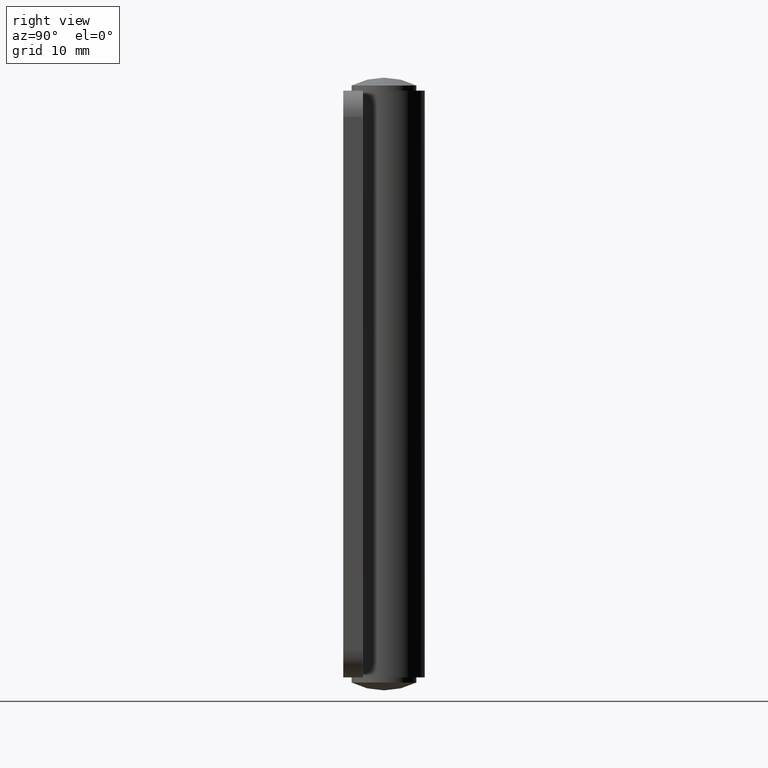
[diagram: clean part render]
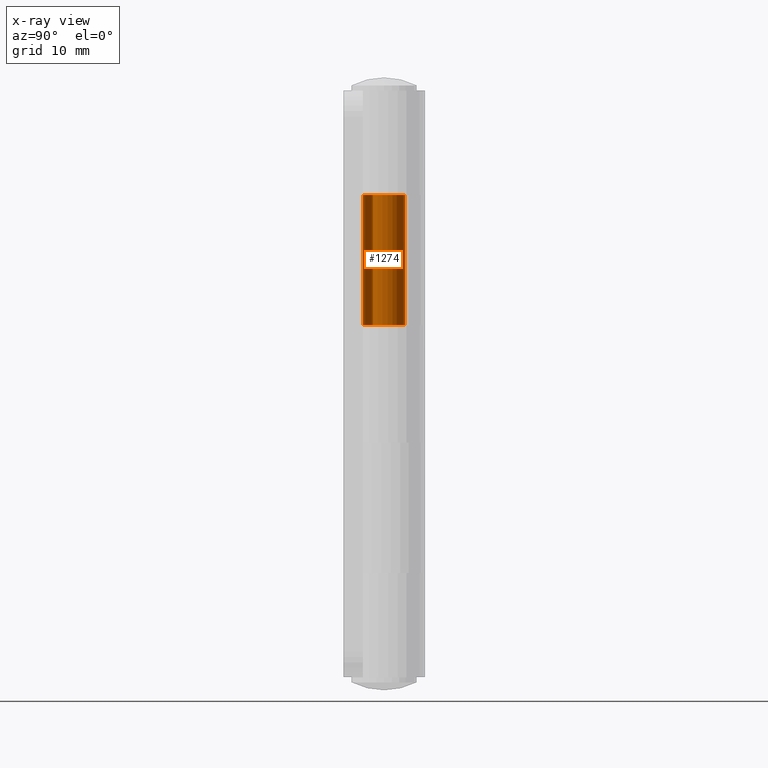
[diagram: x-ray — body ghosted, one internal face saturated and labeled with its STEP entity id]
A machine part, right view, then the same camera in x-ray: the body is ghosted and one INTERNAL B-rep face — a face not visible from any outside direction — is saturated and labeled: STEP entity #1274.
In plain terms, the highlighted cylindrical surface (edge-blend (fillet) strip) has radius 3.25 mm, axis along (0, 0, -1).
Its self-contained STEP definition (entity closure, byte-faithful):
#160=FACE_OUTER_BOUND('',#248,.T.);
#248=EDGE_LOOP('',(#1163,#1164,#1165,#1166));
#363=LINE('',#2146,#469);
#366=LINE('',#2156,#472);
#469=VECTOR('',#1762,20.);
#472=VECTOR('',#1779,20.);
#518=CIRCLE('',#1373,3.25);
#525=CIRCLE('',#1386,3.25);
#626=VERTEX_POINT('',#2074);
#627=VERTEX_POINT('',#2076);
#637=VERTEX_POINT('',#2111);
#638=VERTEX_POINT('',#2113);
#778=EDGE_CURVE('',#627,#626,#518,.T.);
#798=EDGE_CURVE('',#638,#637,#525,.T.);
#815=EDGE_CURVE('',#626,#638,#363,.T.);
#818=EDGE_CURVE('',#637,#627,#366,.T.);
#1163=ORIENTED_EDGE('',*,*,#778,.T.);
#1164=ORIENTED_EDGE('',*,*,#815,.T.);
#1165=ORIENTED_EDGE('',*,*,#798,.T.);
#1166=ORIENTED_EDGE('',*,*,#818,.T.);
#1208=CYLINDRICAL_SURFACE('',#1409,3.25);
#1274=ADVANCED_FACE('',(#160),#1208,.F.);
#1373=AXIS2_PLACEMENT_3D('',#2077,#1684,#1685);
#1386=AXIS2_PLACEMENT_3D('',#2114,#1723,#1724);
#1409=AXIS2_PLACEMENT_3D('',#2158,#1782,#1783);
#1684=DIRECTION('center_axis',(2.22044604925031E-16,3.08148791101958E-32,
-1.));
#1685=DIRECTION('ref_axis',(-1.22464679914735E-16,1.,3.62225764125809E-33));
#1723=DIRECTION('center_axis',(-1.48029736616688E-16,-1.64346021921044E-32,
1.));
#1724=DIRECTION('ref_axis',(-1.22464679914735E-16,1.,-1.69381212052082E-33));
#1762=DIRECTION('',(0.,0.,1.));
#1779=DIRECTION('',(0.,0.,-1.));
#1782=DIRECTION('center_axis',(0.,0.,1.));
#1783=DIRECTION('ref_axis',(-1.22464679914735E-16,1.,0.));
#2074=CARTESIAN_POINT('',(3.9801020972289E-16,-3.25,-29.));
#2076=CARTESIAN_POINT('',(-2.77604034552814,-1.69,-29.));
#2077=CARTESIAN_POINT('Origin',(0.,0.,-29.));
#2111=CARTESIAN_POINT('',(-2.77604034552814,-1.69,-9.));
#2113=CARTESIAN_POINT('',(3.9801020972289E-16,-3.25,-9.));
#2114=CARTESIAN_POINT('Origin',(0.,0.,-9.));
#2146=CARTESIAN_POINT('',(3.9801020972289E-16,-3.25,0.));
#2156=CARTESIAN_POINT('',(-2.77604034552814,-1.69,0.));
#2158=CARTESIAN_POINT('Origin',(0.,0.,0.));